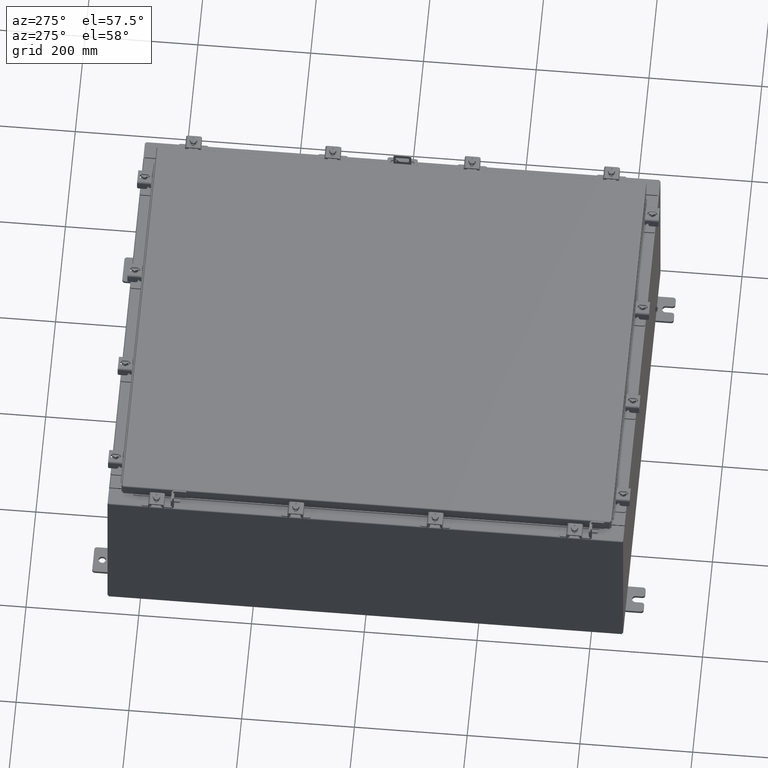
[diagram: clean part render]
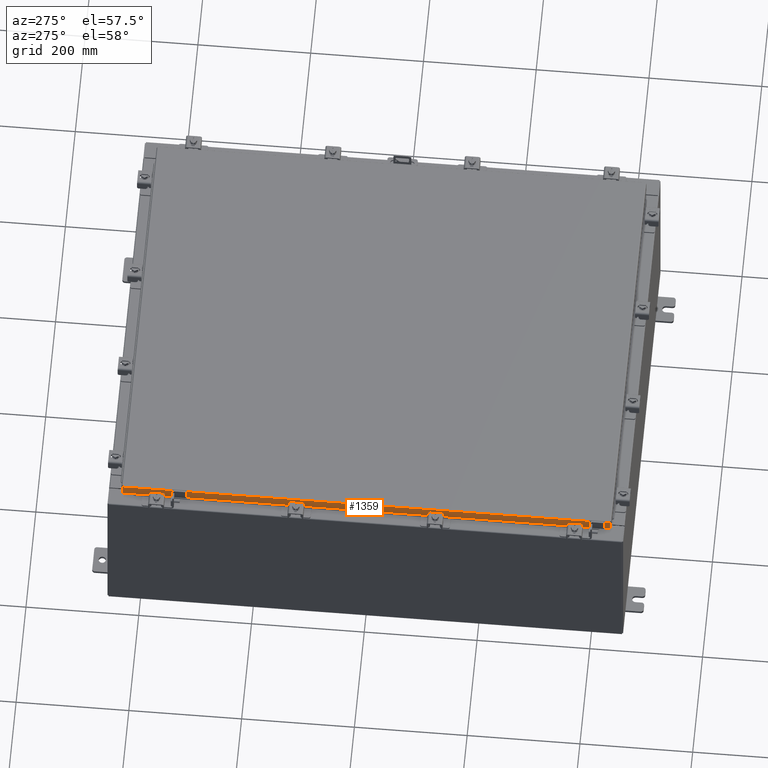
[diagram: same view with one face highlighted and labeled with its STEP entity id]
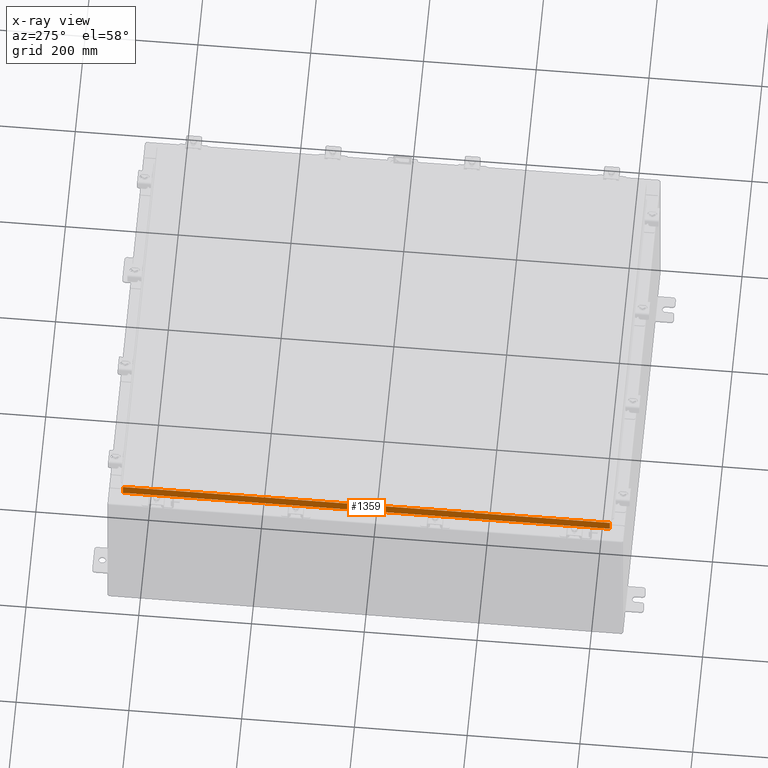
[diagram: x-ray of the same camera — body ghosted, the highlighted face saturated]
A machine part, auxiliary view. The second image highlights one B-rep face of the part: STEP entity #1359.
The next image is the same camera in x-ray: the body ghosted, the highlighted face saturated — about 0% of this face is hidden behind the body in this view.
In plain terms, the highlighted planar face has unit normal (1, 0, -0).
Its self-contained STEP definition (entity closure, byte-faithful):
#1359 = ADVANCED_FACE ( 'NONE', ( #16956 ), #14197, .F. ) ;
#2680 = LINE ( 'NONE', #18126, #10959 ) ;
#4049 = VECTOR ( 'NONE', #11020, 39.37007874015748100 ) ;
#4505 = VERTEX_POINT ( 'NONE', #9402 ) ;
#4639 = LINE ( 'NONE', #5443, #9937 ) ;
#4818 = VERTEX_POINT ( 'NONE', #7324 ) ;
#5443 = CARTESIAN_POINT ( 'NONE',  ( -14.07799999999999900, -17.00515786437627200, -0.07469999999999978000 ) ) ;
#5792 = CARTESIAN_POINT ( 'NONE',  ( -14.07799999999999900, -17.09400000000000100, -0.08770000000000007000 ) ) ;
#6290 = VERTEX_POINT ( 'NONE', #19369 ) ;
#6620 = DIRECTION ( 'NONE',  ( -0.0000000000000000000, 1.000000000000000000, -0.0000000000000000000 ) ) ;
#7005 = AXIS2_PLACEMENT_3D ( 'NONE', #15195, #20094, #13894 ) ;
#7324 = CARTESIAN_POINT ( 'NONE',  ( -14.07799999999999900, -17.00515786437626900, -0.08770000000000007000 ) ) ;
#7494 = CARTESIAN_POINT ( 'NONE',  ( -14.07799999999999900, 17.00515786437626500, 1.586914022634634500E-013 ) ) ;
#7683 = EDGE_LOOP ( 'NONE', ( #17956, #14901, #18100, #13769, #10589, #18389 ) ) ;
#7893 = LINE ( 'NONE', #18713, #12011 ) ;
#7926 = DIRECTION ( 'NONE',  ( 4.379057701015054300E-047, 1.000000000000000000, 1.238552822680358400E-016 ) ) ;
#9402 = CARTESIAN_POINT ( 'NONE',  ( -14.07799999999999900, 17.00515786437626500, -0.08770000000000007000 ) ) ;
#9937 = VECTOR ( 'NONE', #17663, 39.37007874015748100 ) ;
#10333 = CARTESIAN_POINT ( 'NONE',  ( -14.07800000000000300, -17.00515786437626900, -0.8499999999999996400 ) ) ;
#10589 = ORIENTED_EDGE ( 'NONE', *, *, #13939, .F. ) ;
#10959 = VECTOR ( 'NONE', #21594, 39.37007874015748100 ) ;
#11020 = DIRECTION ( 'NONE',  ( -2.818880942772360500E-015, 6.982962677686269100E-015, -1.000000000000000000 ) ) ;
#11855 = EDGE_CURVE ( 'NONE', #4505, #4818, #15818, .T. ) ;
#12011 = VECTOR ( 'NONE', #6620, 39.37007874015748100 ) ;
#12431 = EDGE_CURVE ( 'NONE', #4505, #18113, #17446, .T. ) ;
#12909 = LINE ( 'NONE', #13181, #16954 ) ;
#13181 = CARTESIAN_POINT ( 'NONE',  ( -14.07800000000000300, -17.09400000000000100, -0.8499999999999996400 ) ) ;
#13769 = ORIENTED_EDGE ( 'NONE', *, *, #22324, .F. ) ;
#13894 = DIRECTION ( 'NONE',  ( -2.818880942772360100E-015, 0.0000000000000000000, -1.000000000000000000 ) ) ;
#13939 = EDGE_CURVE ( 'NONE', #14899, #6290, #2680, .T. ) ;
#14197 = PLANE ( 'NONE',  #7005 ) ;
#14580 = CARTESIAN_POINT ( 'NONE',  ( -14.07799999999999400, 16.25515786437627200, -0.8500000000000025300 ) ) ;
#14899 = VERTEX_POINT ( 'NONE', #10333 ) ;
#14901 = ORIENTED_EDGE ( 'NONE', *, *, #12431, .T. ) ;
#15195 = CARTESIAN_POINT ( 'NONE',  ( -14.07799999999999900, -4.915098524856876500E-030, 3.994501956836086200E-014 ) ) ;
#15818 = LINE ( 'NONE', #5792, #20185 ) ;
#16954 = VECTOR ( 'NONE', #7926, 39.37007874015748100 ) ;
#16956 = FACE_OUTER_BOUND ( 'NONE', #7683, .T. ) ;
#17446 = LINE ( 'NONE', #7494, #4049 ) ;
#17663 = DIRECTION ( 'NONE',  ( -2.818880942772360500E-015, 6.982962677686269100E-015, -1.000000000000000000 ) ) ;
#17956 = ORIENTED_EDGE ( 'NONE', *, *, #11855, .F. ) ;
#17988 = DIRECTION ( 'NONE',  ( 3.491332948470575600E-031, -1.000000000000000000, -9.516562228463834600E-046 ) ) ;
#18100 = ORIENTED_EDGE ( 'NONE', *, *, #19364, .F. ) ;
#18113 = VERTEX_POINT ( 'NONE', #18200 ) ;
#18126 = CARTESIAN_POINT ( 'NONE',  ( -14.07800000000000300, -17.09400000000000100, -0.8499999999999996400 ) ) ;
#18200 = CARTESIAN_POINT ( 'NONE',  ( -14.07800000000000300, 17.00515786437627200, -0.8499999999999953100 ) ) ;
#18389 = ORIENTED_EDGE ( 'NONE', *, *, #20397, .F. ) ;
#18700 = VERTEX_POINT ( 'NONE', #14580 ) ;
#18713 = CARTESIAN_POINT ( 'NONE',  ( -14.07799999999999400, -16.25515786437626900, -0.8500000000000025300 ) ) ;
#19364 = EDGE_CURVE ( 'NONE', #18700, #18113, #12909, .T. ) ;
#19369 = CARTESIAN_POINT ( 'NONE',  ( -14.07799999999999400, -16.25515786437626500, -0.8500000000000025300 ) ) ;
#20094 = DIRECTION ( 'NONE',  ( 1.000000000000000000, 3.491332948470575600E-031, -2.818880942772360100E-015 ) ) ;
#20185 = VECTOR ( 'NONE', #17988, 39.37007874015748100 ) ;
#20397 = EDGE_CURVE ( 'NONE', #4818, #14899, #4639, .T. ) ;
#21594 = DIRECTION ( 'NONE',  ( 4.379057701015054300E-047, 1.000000000000000000, 1.238552822680358400E-016 ) ) ;
#22324 = EDGE_CURVE ( 'NONE', #6290, #18700, #7893, .T. ) ;